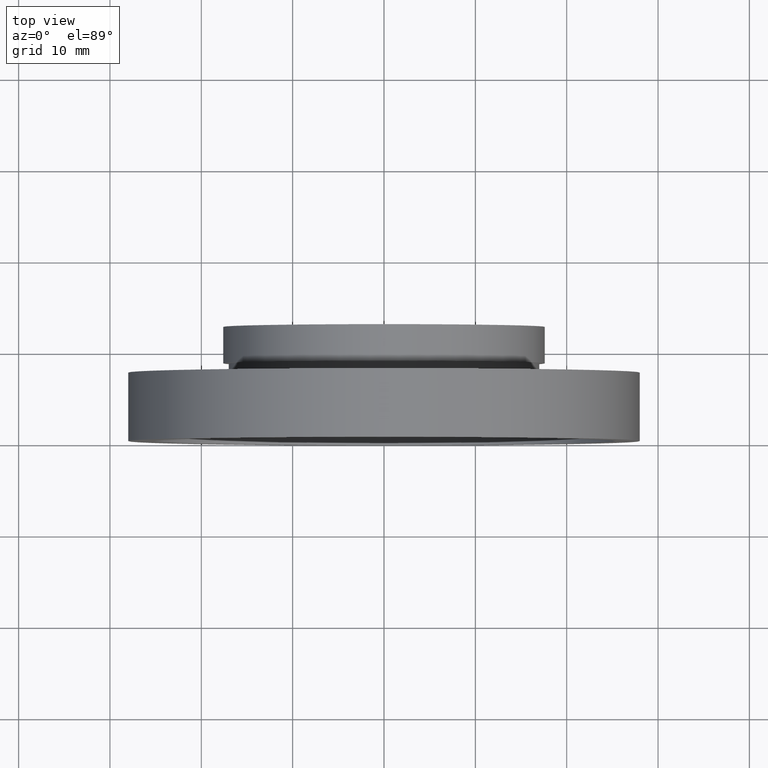
[diagram: clean part render]
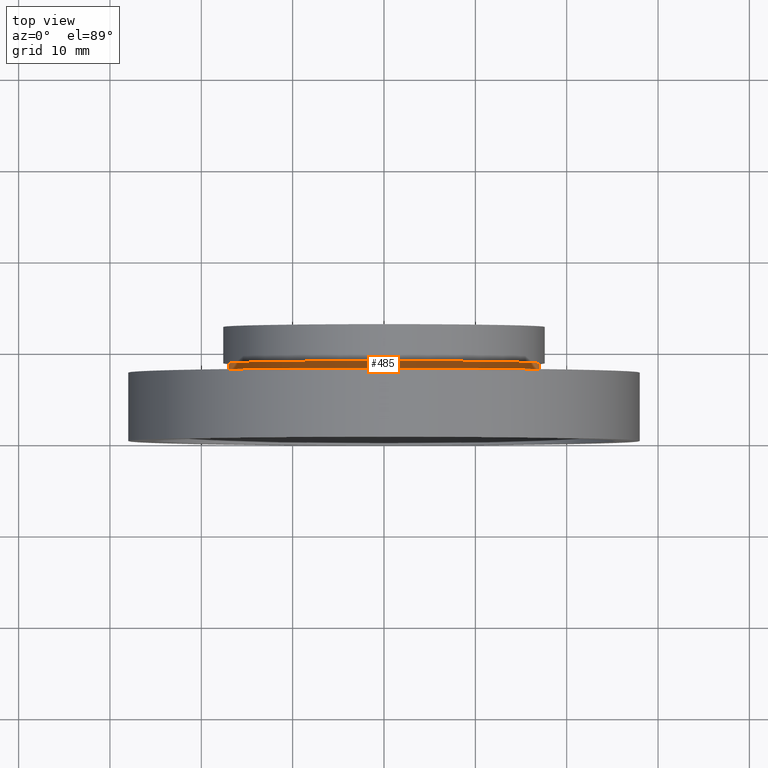
[diagram: same view with one face highlighted and labeled with its STEP entity id]
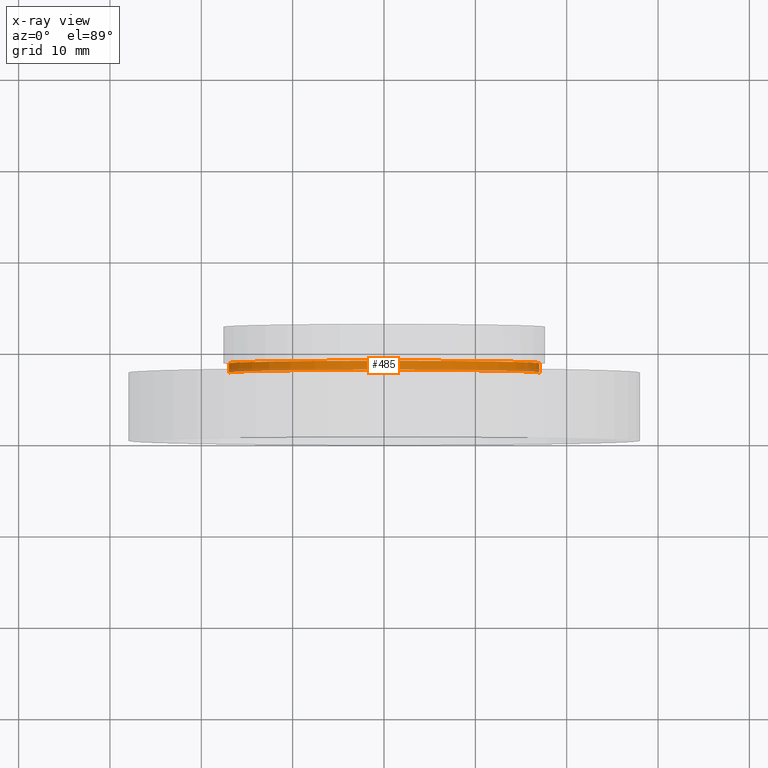
[diagram: x-ray of the same camera — body ghosted, the highlighted face saturated]
A machine part, top view. The second image highlights one B-rep face of the part: STEP entity #485.
The next image is the same camera in x-ray: the body ghosted, the highlighted face saturated — about 22% of this face is hidden behind the body in this view.
In plain terms, the highlighted cylindrical surface (partial cylindrical patch) has radius 17 mm, axis along (-0, 1, -0).
Its self-contained STEP definition (entity closure, byte-faithful):
#5 = CARTESIAN_POINT ( 'NONE',  ( -17.00000000000000000, 16.88601823708207300, 0.0000000000000000000 ) ) ;
#13 = FACE_OUTER_BOUND ( 'NONE', #315, .T. ) ;
#30 = CIRCLE ( 'NONE', #487, 17.00000000000000000 ) ;
#53 = EDGE_CURVE ( 'NONE', #310, #161, #503, .T. ) ;
#64 = CARTESIAN_POINT ( 'NONE',  ( -17.00000000000000000, 8.499999999999996400, 0.0000000000000000000 ) ) ;
#89 = DIRECTION ( 'NONE',  ( -1.224646799147351000E-016, 1.000000000000000000, -0.0000000000000000000 ) ) ;
#107 = EDGE_CURVE ( 'NONE', #252, #161, #207, .T. ) ;
#123 = CARTESIAN_POINT ( 'NONE',  ( 17.00000000000000000, 8.500000000000000000, 2.081899558550500300E-015 ) ) ;
#132 = VECTOR ( 'NONE', #294, 1000.000000000000000 ) ;
#133 = CARTESIAN_POINT ( 'NONE',  ( 1.149455719078122700E-015, 7.499999999999998200, 0.0000000000000000000 ) ) ;
#161 = VERTEX_POINT ( 'NONE', #123 ) ;
#169 = ORIENTED_EDGE ( 'NONE', *, *, #264, .T. ) ;
#176 = DIRECTION ( 'NONE',  ( -1.224646799147351000E-016, 1.000000000000000000, -0.0000000000000000000 ) ) ;
#184 = AXIS2_PLACEMENT_3D ( 'NONE', #618, #89, #232 ) ;
#193 = DIRECTION ( 'NONE',  ( -1.224646799147351000E-016, 1.000000000000000000, -0.0000000000000000000 ) ) ;
#203 = CYLINDRICAL_SURFACE ( 'NONE', #408, 17.00000000000000000 ) ;
#207 = LINE ( 'NONE', #474, #464 ) ;
#222 = CARTESIAN_POINT ( 'NONE',  ( -17.00000000000000000, 7.499999999999996400, 0.0000000000000000000 ) ) ;
#228 = EDGE_CURVE ( 'NONE', #549, #310, #558, .T. ) ;
#232 = DIRECTION ( 'NONE',  ( -1.000000000000000000, -1.020425574104004100E-016, 0.0000000000000000000 ) ) ;
#252 = VERTEX_POINT ( 'NONE', #296 ) ;
#259 = DIRECTION ( 'NONE',  ( -1.224646799147351000E-016, 1.000000000000000000, -0.0000000000000000000 ) ) ;
#264 = EDGE_CURVE ( 'NONE', #549, #252, #30, .T. ) ;
#294 = DIRECTION ( 'NONE',  ( -1.224646799147351000E-016, 1.000000000000000000, -0.0000000000000000000 ) ) ;
#296 = CARTESIAN_POINT ( 'NONE',  ( 17.00000000000000000, 7.500000000000000000, 2.081899558550500300E-015 ) ) ;
#310 = VERTEX_POINT ( 'NONE', #64 ) ;
#313 = DIRECTION ( 'NONE',  ( -1.000000000000000000, -2.040851148208008200E-016, 0.0000000000000000000 ) ) ;
#315 = EDGE_LOOP ( 'NONE', ( #169, #619, #450, #440 ) ) ;
#408 = AXIS2_PLACEMENT_3D ( 'NONE', #506, #259, #313 ) ;
#440 = ORIENTED_EDGE ( 'NONE', *, *, #228, .F. ) ;
#450 = ORIENTED_EDGE ( 'NONE', *, *, #53, .F. ) ;
#464 = VECTOR ( 'NONE', #176, 1000.000000000000000 ) ;
#474 = CARTESIAN_POINT ( 'NONE',  ( 17.00000000000000000, 16.88601823708208000, 2.081899558550500300E-015 ) ) ;
#485 = ADVANCED_FACE ( 'NONE', ( #13 ), #203, .T. ) ;
#487 = AXIS2_PLACEMENT_3D ( 'NONE', #133, #193, #529 ) ;
#503 = CIRCLE ( 'NONE', #184, 17.00000000000000000 ) ;
#506 = CARTESIAN_POINT ( 'NONE',  ( 0.0000000000000000000, 16.88601823708207700, 0.0000000000000000000 ) ) ;
#529 = DIRECTION ( 'NONE',  ( -1.000000000000000000, -1.020425574104004100E-016, 0.0000000000000000000 ) ) ;
#549 = VERTEX_POINT ( 'NONE', #222 ) ;
#558 = LINE ( 'NONE', #5, #132 ) ;
#618 = CARTESIAN_POINT ( 'NONE',  ( 1.026991039163387700E-015, 8.499999999999998200, 0.0000000000000000000 ) ) ;
#619 = ORIENTED_EDGE ( 'NONE', *, *, #107, .T. ) ;